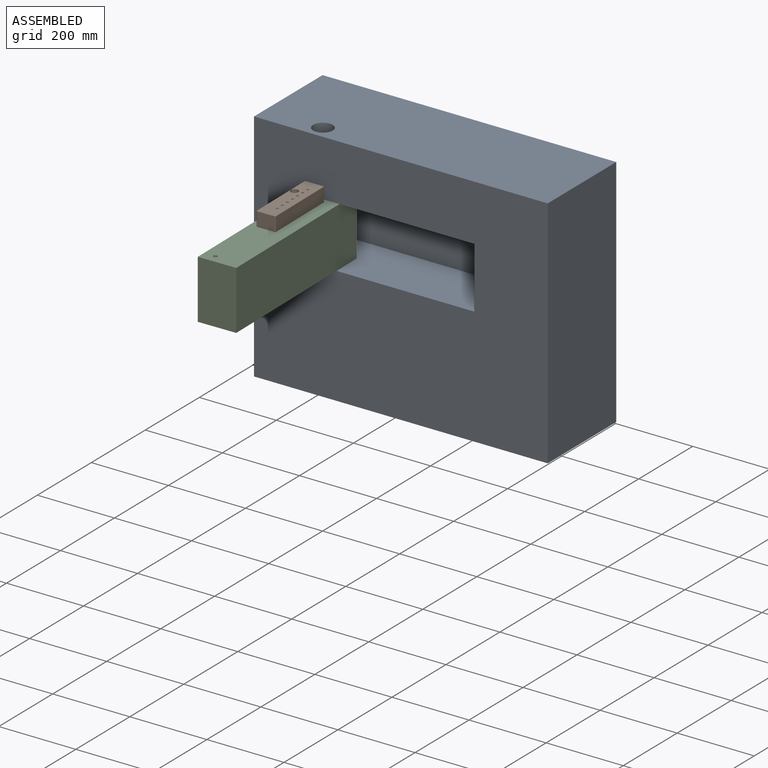
[diagram: assembled view]
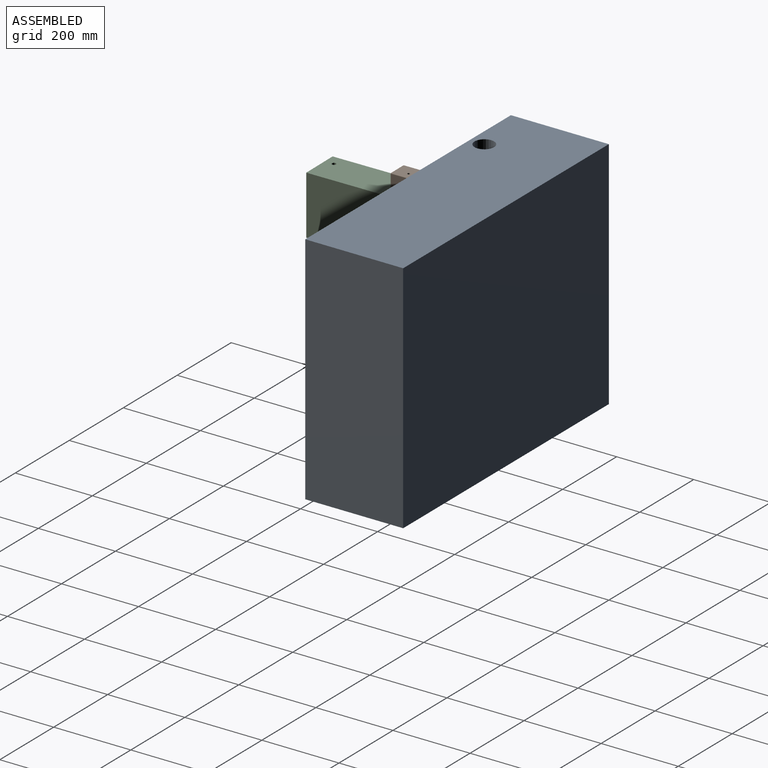
[diagram: assembled view, second angle]
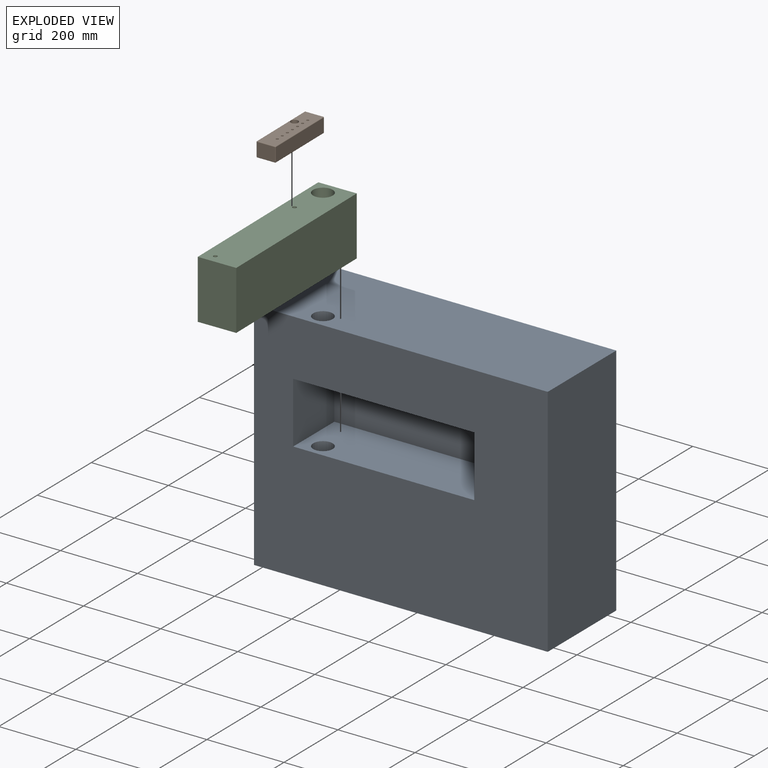
[diagram: exploded view]
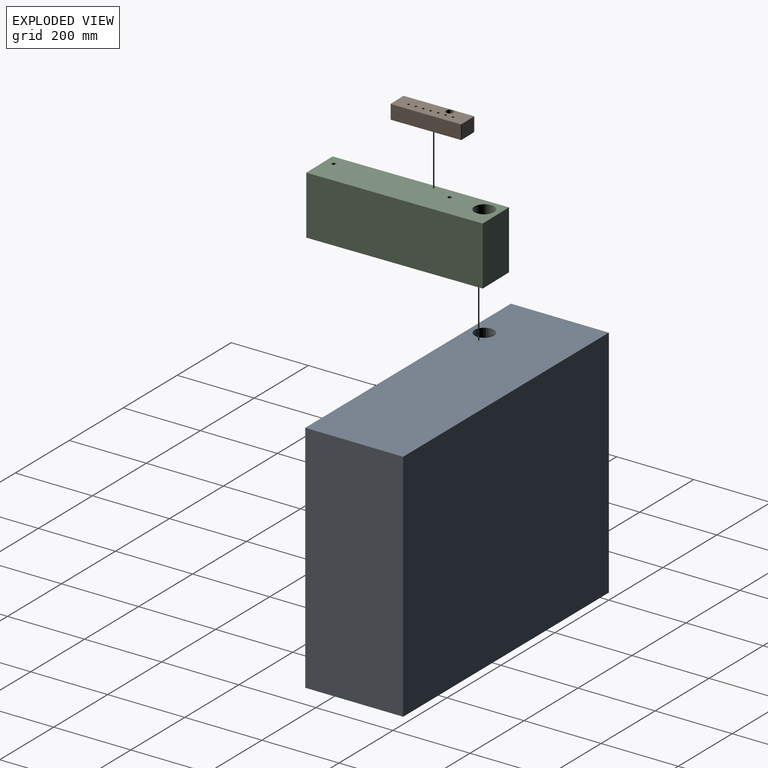
[diagram: exploded view, second angle]
ASSEMBLY  parts=3 mates=2
PART A: 13 faces, bbox 762x254x609.6 mm
  f0: plane 762x609.6mm, normal (0,-1,0), area 389918.6mm2, adj f2,f3,f4,f5,f6,f7,f8,f9
  f1: plane 762x609.6mm, normal (0,1,0), area 464515.2mm2, adj f2,f3,f4,f5
  f2: plane 609.6x254mm, normal (-1,0,0), area 154838.4mm2, adj f0,f1,f4,f5
  f3: plane 609.6x254mm, normal (1,0,0), area 154838.4mm2, adj f0,f1,f4,f5
  f4: plane 762x254mm, normal (0,0,1), area 191521.2mm2, adj f0,f1,f2,f3,f12
  f5: plane 762x254mm, normal (0,0,-1), area 191521.2mm2, adj f0,f1,f2,f3,f11
  f6: plane 469.9x152.4mm, normal (0,0,-1), area 69585.9mm2, adj f0,f7,f9,f10,f12
  f7: plane 158.75x152.4mm, normal (1,0,0), area 24193.5mm2, adj f0,f6,f8,f10
  f8: plane 469.9x152.4mm, normal (0,0,1), area 69585.9mm2, adj f0,f7,f9,f10,f11
  f9: plane 158.75x152.4mm, normal (-1,0,0), area 24193.5mm2, adj f0,f6,f8,f10
  f10: plane 469.9x158.75mm, normal (0,-1,0), area 74596.6mm2, adj f6,f7,f8,f9
  f11: cylinder r=25.4mm len=304.8mm, axis (0,0,-1), area 48643.9mm2, adj f5,f8
  f12: cylinder r=25.4mm len=146.05mm, axis (0,0,-1), area 23308.5mm2, adj f4,f6
PART B: 43 faces, bbox 182.9x49.3x38.1 mm
  f0: plane 46.23x35.05mm, normal (1,0,0), area 1620.4mm2, adj f9,f13,f14,f15
  f1: plane 179.83x35.05mm, normal (0,1,0), area 6303.5mm2, adj f9,f12,f16,f17
  f2: plane 46.23x35.05mm, normal (-1,0,0), area 1620.4mm2, adj f17,f22,f25,f28
  f3: plane 179.83x35.05mm, normal (0,-1,0), area 6303.5mm2, adj f14,f23,f24,f28
  f4: plane 179.83x46.23mm, normal (0,0,1), area 7800.6mm2, adj f8,f12,f13,f22,f23,f30,f32,f34
  f5: plane 179.83x46.23mm, normal (0,0,-1), area 8180.5mm2, adj f6,f15,f16,f24,f25
  f6: cylinder r=6.5mm len=26.1mm, axis (0,0,1), area 1065.9mm2, adj f5,f7
  f7: plane 19.25x19.25mm, normal (0,0,1), area 158.3mm2, adj f6,f8
  f8: cylinder r=9.62mm len=19.25mm, axis (0,0,1), area 725.7mm2, adj f4,f7
  f9: cylinder r=1.52mm len=35.05mm, axis (0,0,-1), area 83.9mm2, adj f0,f1,f10,f11
  f10: sphere r=1.52mm, area 3.6mm2, adj f9,f12,f13
  f11: sphere r=1.52mm, area 3.6mm2, adj f9,f15,f16
  f12: cylinder r=1.52mm len=179.83mm, axis (1,0,0), area 430.5mm2, adj f1,f4,f10,f18
  f13: cylinder r=1.52mm len=46.23mm, axis (0,-1,0), area 110.7mm2, adj f0,f4,f10,f19
  f14: cylinder r=1.52mm len=35.05mm, axis (0,0,1), area 83.9mm2, adj f0,f3,f19,f20
  f15: cylinder r=1.52mm len=46.23mm, axis (0,1,0), area 110.7mm2, adj f0,f5,f11,f20
  f16: cylinder r=1.52mm len=179.83mm, axis (-1,0,0), area 430.5mm2, adj f1,f5,f11,f21
  f17: cylinder r=1.52mm len=35.05mm, axis (0,0,1), area 83.9mm2, adj f1,f2,f18,f21
  f18: sphere r=1.52mm, area 3.6mm2, adj f12,f17,f22
  f19: sphere r=1.52mm, area 3.6mm2, adj f13,f14,f23
  f20: sphere r=1.52mm, area 3.6mm2, adj f14,f15,f24
  f21: sphere r=1.52mm, area 3.6mm2, adj f16,f17,f25
  f22: cylinder r=1.52mm len=46.23mm, axis (0,1,0), area 110.7mm2, adj f2,f4,f18,f26
  f23: cylinder r=1.52mm len=179.83mm, axis (-1,0,0), area 430.5mm2, adj f3,f4,f19,f26
  f24: cylinder r=1.52mm len=179.83mm, axis (1,0,0), area 430.5mm2, adj f3,f5,f20,f27
  f25: cylinder r=1.52mm len=46.23mm, axis (0,-1,0), area 110.7mm2, adj f2,f5,f21,f27
  f26: sphere r=1.52mm, area 3.6mm2, adj f22,f23,f28
  f27: sphere r=1.52mm, area 3.6mm2, adj f24,f25,f28
  f28: cylinder r=1.52mm len=35.05mm, axis (0,0,-1), area 83.9mm2, adj f2,f3,f26,f27
  f29: cone r=0mm half-angle=59deg, axis (0,0,1), area 36.9mm2, adj f30
  f30: cylinder r=3.17mm len=31.75mm, axis (0,0,1), area 633.4mm2, adj f4,f29
  f31: cone r=0mm half-angle=59deg, axis (0,0,1), area 36.9mm2, adj f32
  f32: cylinder r=3.17mm len=31.75mm, axis (0,0,1), area 633.4mm2, adj f4,f31
  f33: cone r=0mm half-angle=59deg, axis (0,0,1), area 36.9mm2, adj f34
  f34: cylinder r=3.17mm len=31.75mm, axis (0,0,1), area 633.4mm2, adj f4,f33
  f35: cone r=0mm half-angle=59deg, axis (0,0,1), area 36.9mm2, adj f36
  f36: cylinder r=3.17mm len=31.75mm, axis (0,0,1), area 633.4mm2, adj f4,f35
  f37: cone r=0mm half-angle=59deg, axis (0,0,1), area 36.9mm2, adj f38
  f38: cylinder r=3.17mm len=31.75mm, axis (0,0,1), area 633.4mm2, adj f4,f37
  f39: cone r=0mm half-angle=59deg, axis (0,0,1), area 36.9mm2, adj f40
  f40: cylinder r=3.17mm len=31.75mm, axis (0,0,1), area 633.4mm2, adj f4,f39
  f41: cone r=0mm half-angle=59deg, axis (0,0,1), area 36.9mm2, adj f42
  f42: cylinder r=3.17mm len=31.75mm, axis (0,0,1), area 633.4mm2, adj f4,f41
PART C: 9 faces, bbox 454x99.1x152.4 mm
  f0: plane 152.4x99.06mm, normal (-1,0,0), area 15096.7mm2, adj f1,f3,f5,f6
  f1: plane 454.03x152.4mm, normal (0,-1,0), area 69193.4mm2, adj f0,f2,f5,f6
  f2: plane 152.4x99.06mm, normal (1,0,0), area 15096.7mm2, adj f1,f3,f5,f6
  f3: plane 454.03x152.4mm, normal (0,1,0), area 69193.4mm2, adj f0,f2,f5,f6
  f4: cylinder r=25.4mm len=152.4mm, axis (0,0,-1), area 24322mm2, adj f5,f6
  f5: plane 454.03x99.06mm, normal (0,0,1), area 42782.2mm2, adj f0,f1,f2,f3,f4,f7,f8
  f6: plane 454.03x99.06mm, normal (0,0,-1), area 42782.2mm2, adj f0,f1,f2,f3,f4,f7,f8
  f7: cylinder r=5.15mm len=152.4mm, axis (0,0,1), area 4931.4mm2, adj f5,f6
  f8: cylinder r=5.15mm len=152.4mm, axis (0,0,1), area 4931.4mm2, adj f5,f6
PLACE A t=(152.4,-216.28,457.2)mm
PLACE B rot(axis=(0,0,1),90.6deg) t=(137.48,-405.8,457.2)mm
PLACE C rot(axis=(0,0,-1),89.3deg) t=(152.4,-216.28,457.2)mm
MATE revolute A.f11 <-> C.f4  axis (0,0,1) through (152.4,-216.28,304.8)mm
MATE revolute C.f8 <-> B.f6  axis (0,0,1) through (144.98,-311.04,457.2)mm
